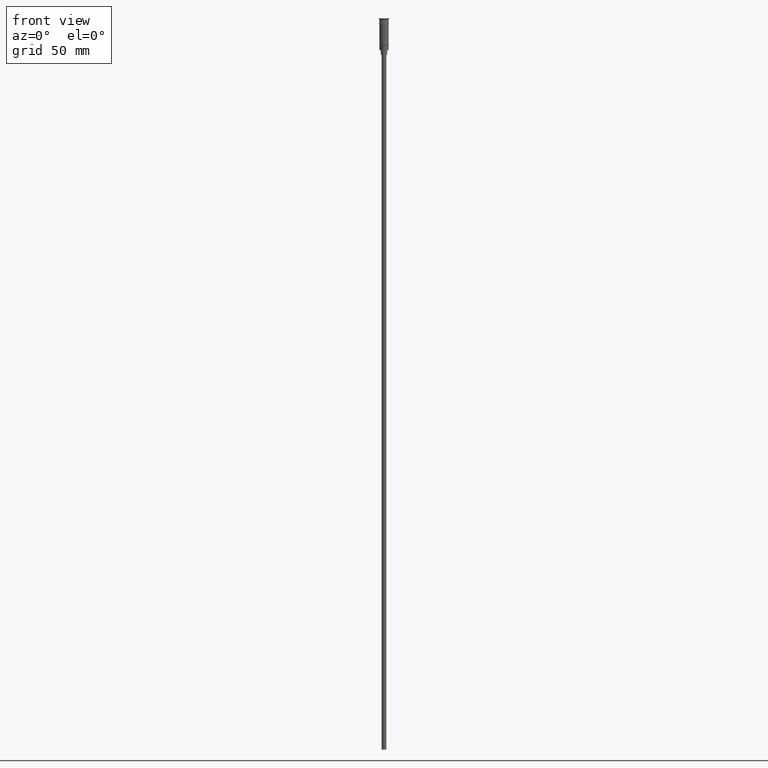
[diagram: clean part render]
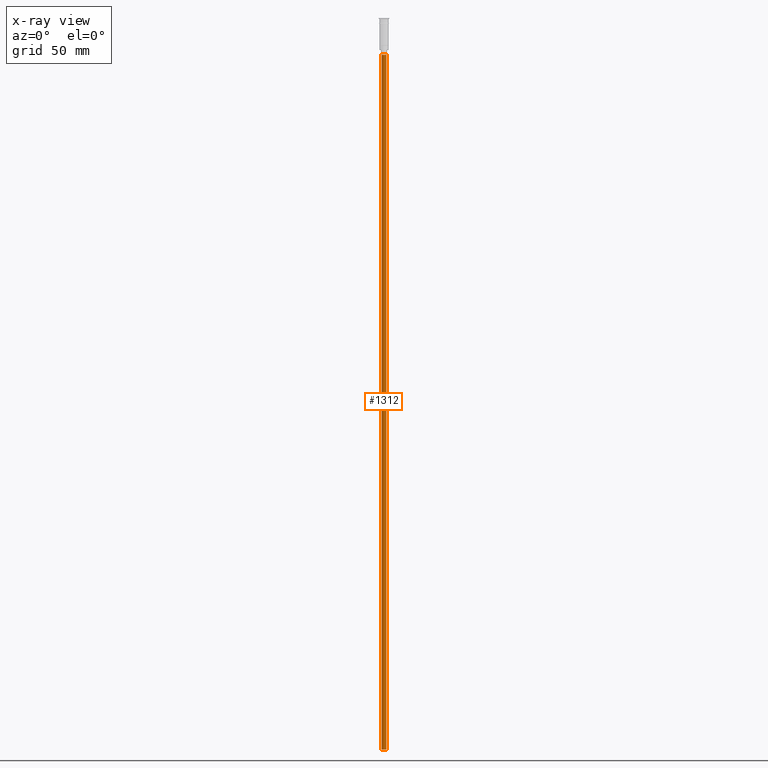
[diagram: x-ray — body ghosted, one internal face saturated and labeled with its STEP entity id]
A machine part, front view, then the same camera in x-ray: the body is ghosted and one INTERNAL B-rep face — a face not visible from any outside direction — is saturated and labeled: STEP entity #1312.
In plain terms, the highlighted cylindrical surface (edge-blend (fillet) strip) has radius 1.5 mm, axis along (-0, -0, 1).
Its self-contained STEP definition (entity closure, byte-faithful):
#154 = VECTOR ( 'NONE', #953, 1000.000000000000000 ) ;
#158 = DIRECTION ( 'NONE',  ( 0.000000000000000000, 0.000000000000000000, -1.000000000000000000 ) ) ;
#283 = AXIS2_PLACEMENT_3D ( 'NONE', #1566, #1484, #856 ) ;
#319 = FACE_OUTER_BOUND ( 'NONE', #971, .T. ) ;
#354 = VERTEX_POINT ( 'NONE', #1525 ) ;
#522 = ORIENTED_EDGE ( 'NONE', *, *, #1356, .T. ) ;
#575 = VERTEX_POINT ( 'NONE', #808 ) ;
#668 = CIRCLE ( 'NONE', #1589, 1.500000000000000222 ) ;
#694 = VECTOR ( 'NONE', #1104, 1000.000000000000000 ) ;
#700 = ORIENTED_EDGE ( 'NONE', *, *, #1353, .F. ) ;
#706 = VERTEX_POINT ( 'NONE', #1562 ) ;
#719 = DIRECTION ( 'NONE',  ( -1.000000000000000000, 0.000000000000000000, 0.000000000000000000 ) ) ;
#808 = CARTESIAN_POINT ( 'NONE',  ( 1.500000000000000222, 0.000000000000000000, -23.50000000000000000 ) ) ;
#816 = CYLINDRICAL_SURFACE ( 'NONE', #283, 1.500000000000000222 ) ;
#856 = DIRECTION ( 'NONE',  ( 1.000000000000000000, 0.000000000000000000, 0.000000000000000000 ) ) ;
#883 = DIRECTION ( 'NONE',  ( 0.000000000000000000, 0.000000000000000000, -1.000000000000000000 ) ) ;
#953 = DIRECTION ( 'NONE',  ( -0.000000000000000000, -0.000000000000000000, 1.000000000000000000 ) ) ;
#971 = EDGE_LOOP ( 'NONE', ( #993, #700, #522, #998 ) ) ;
#993 = ORIENTED_EDGE ( 'NONE', *, *, #1399, .F. ) ;
#998 = ORIENTED_EDGE ( 'NONE', *, *, #1150, .T. ) ;
#1025 = CARTESIAN_POINT ( 'NONE',  ( 0.000000000000000000, 0.000000000000000000, -470.5000000000000568 ) ) ;
#1034 = AXIS2_PLACEMENT_3D ( 'NONE', #1025, #883, #719 ) ;
#1104 = DIRECTION ( 'NONE',  ( -0.000000000000000000, -0.000000000000000000, 1.000000000000000000 ) ) ;
#1150 = EDGE_CURVE ( 'NONE', #575, #706, #668, .T. ) ;
#1234 = LINE ( 'NONE', #1578, #154 ) ;
#1269 = LINE ( 'NONE', #1273, #694 ) ;
#1273 = CARTESIAN_POINT ( 'NONE',  ( -1.500000000000000222, 1.836970198721030181E-16, -470.5000000000000568 ) ) ;
#1282 = CARTESIAN_POINT ( 'NONE',  ( 0.000000000000000000, 0.000000000000000000, -23.50000000000000000 ) ) ;
#1283 = CIRCLE ( 'NONE', #1034, 1.500000000000000222 ) ;
#1301 = VERTEX_POINT ( 'NONE', #1321 ) ;
#1312 = ADVANCED_FACE ( 'NONE', ( #319 ), #816, .T. ) ;
#1321 = CARTESIAN_POINT ( 'NONE',  ( -1.500000000000000222, 1.836970198721030181E-16, -470.5000000000000568 ) ) ;
#1353 = EDGE_CURVE ( 'NONE', #354, #1301, #1283, .T. ) ;
#1356 = EDGE_CURVE ( 'NONE', #354, #575, #1234, .T. ) ;
#1399 = EDGE_CURVE ( 'NONE', #1301, #706, #1269, .T. ) ;
#1484 = DIRECTION ( 'NONE',  ( -0.000000000000000000, -0.000000000000000000, 1.000000000000000000 ) ) ;
#1525 = CARTESIAN_POINT ( 'NONE',  ( 1.500000000000000222, 0.000000000000000000, -470.5000000000000568 ) ) ;
#1545 = DIRECTION ( 'NONE',  ( -1.000000000000000000, 0.000000000000000000, 0.000000000000000000 ) ) ;
#1562 = CARTESIAN_POINT ( 'NONE',  ( -1.500000000000000222, 1.836970198721030181E-16, -23.50000000000000000 ) ) ;
#1566 = CARTESIAN_POINT ( 'NONE',  ( 0.000000000000000000, 0.000000000000000000, -470.5000000000000568 ) ) ;
#1578 = CARTESIAN_POINT ( 'NONE',  ( 1.500000000000000222, 0.000000000000000000, -470.5000000000000568 ) ) ;
#1589 = AXIS2_PLACEMENT_3D ( 'NONE', #1282, #158, #1545 ) ;